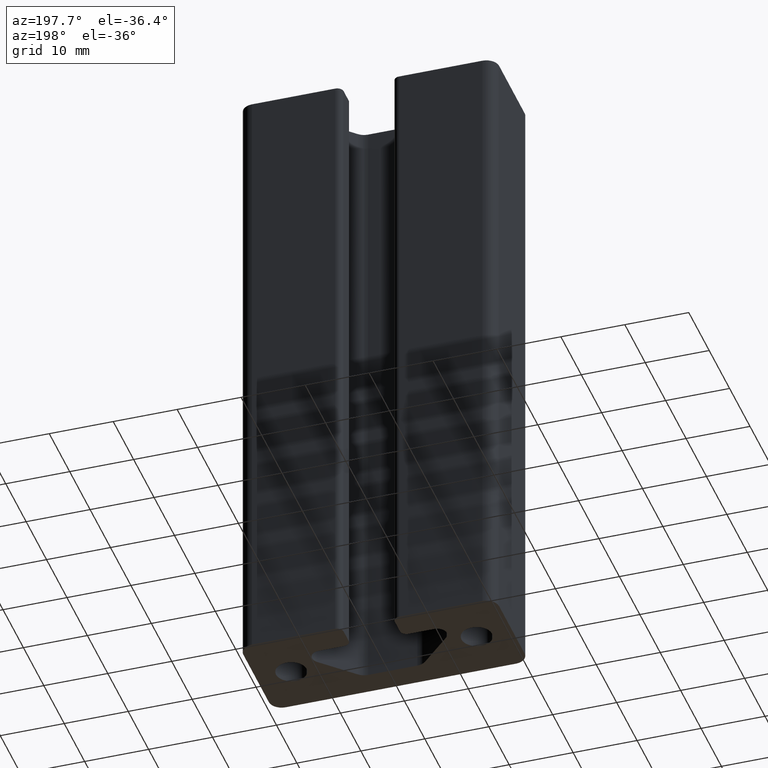
[diagram: clean part render]
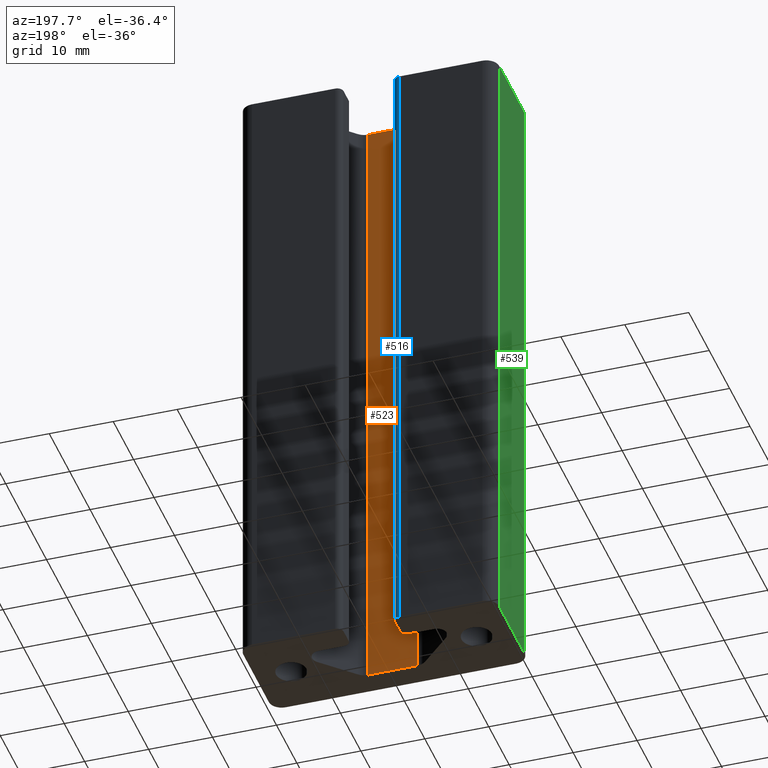
[diagram: same view with three faces highlighted in distinct colors, each labeled with its STEP entity id]
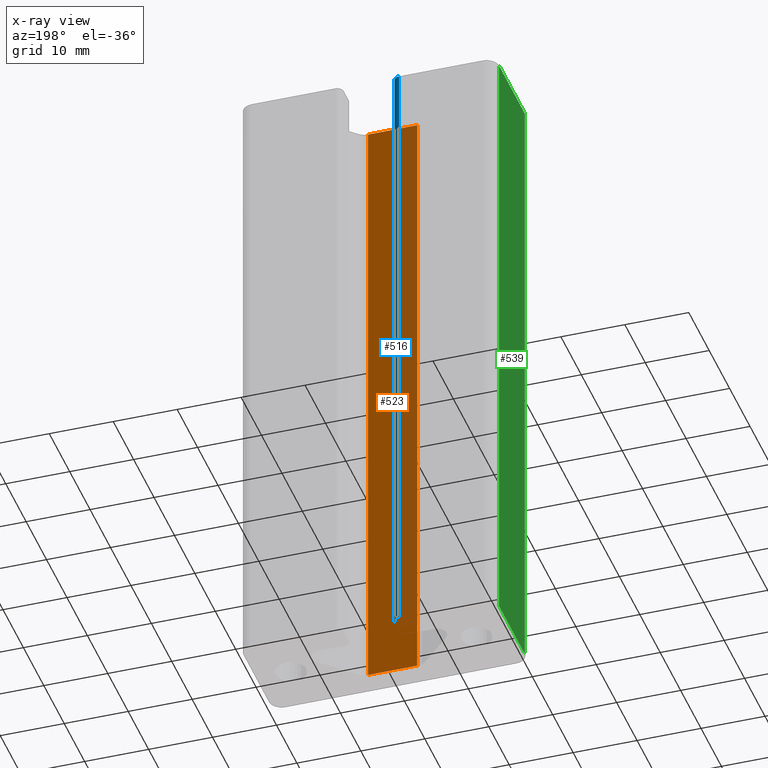
[diagram: x-ray of the same camera — body ghosted, the three highlighted faces saturated]
A machine part, auxiliary view with three faces highlighted in distinct colors.
The next image is the same camera in x-ray (body ghosted, the three faces saturated) — at least one of them is partly hidden behind the body in this view.
Their STEP definitions:

[orange] entity #523 — the highlighted planar face has unit normal (-0, 1, 0).
#71=FACE_OUTER_BOUND('',#99,.T.);
#99=EDGE_LOOP('',(#381,#382,#383,#384));
#141=LINE('',#813,#189);
#142=LINE('',#817,#190);
#143=LINE('',#819,#191);
#144=LINE('',#820,#192);
#189=VECTOR('',#649,100.);
#190=VECTOR('',#654,7.68629110583554);
#191=VECTOR('',#655,100.);
#192=VECTOR('',#656,7.68629110583554);
#237=VERTEX_POINT('',#810);
#238=VERTEX_POINT('',#812);
#239=VERTEX_POINT('',#816);
#240=VERTEX_POINT('',#818);
#296=EDGE_CURVE('',#238,#237,#141,.T.);
#298=EDGE_CURVE('',#237,#239,#142,.T.);
#299=EDGE_CURVE('',#240,#239,#143,.T.);
#300=EDGE_CURVE('',#238,#240,#144,.T.);
#381=ORIENTED_EDGE('',*,*,#298,.T.);
#382=ORIENTED_EDGE('',*,*,#299,.F.);
#383=ORIENTED_EDGE('',*,*,#300,.F.);
#384=ORIENTED_EDGE('',*,*,#296,.T.);
#505=PLANE('',#561);
#523=ADVANCED_FACE('',(#71),#505,.T.);
#561=AXIS2_PLACEMENT_3D('',#815,#652,#653);
#649=DIRECTION('',(0.,0.,1.));
#652=DIRECTION('center_axis',(-2.8888393877829E-16,1.,0.));
#653=DIRECTION('ref_axis',(0.,0.,1.));
#654=DIRECTION('',(1.,2.8888393877829E-16,0.));
#655=DIRECTION('',(0.,0.,1.));
#656=DIRECTION('',(1.,2.8888393877829E-16,0.));
#810=CARTESIAN_POINT('',(-3.84314955291772,-4.25000000000006,100.));
#812=CARTESIAN_POINT('',(-3.84314955291772,-4.25000000000006,0.));
#813=CARTESIAN_POINT('',(-3.84314955291772,-4.25000000000006,0.));
#815=CARTESIAN_POINT('Origin',(-3.84314955291772,-4.25000000000006,0.));
#816=CARTESIAN_POINT('',(3.84314155291782,-4.25000000000006,100.));
#817=CARTESIAN_POINT('',(-1.92157552645886,-4.25000000000006,100.));
#818=CARTESIAN_POINT('',(3.84314155291782,-4.25000000000006,0.));
#819=CARTESIAN_POINT('',(3.84314155291782,-4.25000000000006,0.));
#820=CARTESIAN_POINT('',(-1.92157552645886,-4.25000000000006,0.));

[blue] entity #516 — the highlighted cylindrical surface (edge-blend (fillet) strip) has radius 1 mm, axis along (0, 0, 1).
#21=CIRCLE('',#547,1.000000004051);
#22=CIRCLE('',#548,1.000000004051);
#49=CYLINDRICAL_SURFACE('',#546,1.000000004051);
#64=FACE_OUTER_BOUND('',#92,.T.);
#92=EDGE_LOOP('',(#353,#354,#355,#356));
#126=LINE('',#769,#174);
#129=LINE('',#777,#177);
#174=VECTOR('',#606,100.);
#177=VECTOR('',#613,100.);
#222=VERTEX_POINT('',#766);
#223=VERTEX_POINT('',#768);
#225=VERTEX_POINT('',#774);
#226=VERTEX_POINT('',#776);
#274=EDGE_CURVE('',#223,#222,#126,.T.);
#277=EDGE_CURVE('',#222,#225,#21,.T.);
#278=EDGE_CURVE('',#226,#225,#129,.T.);
#279=EDGE_CURVE('',#223,#226,#22,.T.);
#353=ORIENTED_EDGE('',*,*,#277,.T.);
#354=ORIENTED_EDGE('',*,*,#278,.F.);
#355=ORIENTED_EDGE('',*,*,#279,.F.);
#356=ORIENTED_EDGE('',*,*,#274,.T.);
#516=ADVANCED_FACE('',(#64),#49,.T.);
#546=AXIS2_PLACEMENT_3D('',#773,#609,#610);
#547=AXIS2_PLACEMENT_3D('',#775,#611,#612);
#548=AXIS2_PLACEMENT_3D('',#778,#614,#615);
#606=DIRECTION('',(0.,0.,1.));
#609=DIRECTION('center_axis',(0.,0.,1.));
#610=DIRECTION('ref_axis',(-1.,2.22044604025528E-15,0.));
#611=DIRECTION('center_axis',(0.,0.,-1.));
#612=DIRECTION('ref_axis',(-1.,2.22044604025528E-15,0.));
#613=DIRECTION('',(0.,0.,1.));
#614=DIRECTION('center_axis',(0.,0.,-1.));
#615=DIRECTION('ref_axis',(-1.,2.22044604025528E-15,0.));
#766=CARTESIAN_POINT('',(-5.00000000436262,8.25000000405095,100.));
#768=CARTESIAN_POINT('',(-5.00000000436262,8.25000000405095,0.));
#769=CARTESIAN_POINT('',(-5.00000000436262,8.25000000405095,0.));
#773=CARTESIAN_POINT('Origin',(-5.000000004051,7.24999999999995,0.));
#774=CARTESIAN_POINT('',(-4.,7.24999999999995,100.));
#775=CARTESIAN_POINT('Origin',(-5.000000004051,7.24999999999995,100.));
#776=CARTESIAN_POINT('',(-4.,7.24999999999995,0.));
#777=CARTESIAN_POINT('',(-4.,7.24999999999995,0.));
#778=CARTESIAN_POINT('Origin',(-5.000000004051,7.24999999999995,0.));

[green] entity #539 — the highlighted planar face has unit normal (-1, 0, 0).
#87=FACE_OUTER_BOUND('',#117,.T.);
#117=EDGE_LOOP('',(#441,#442,#443,#444));
#169=LINE('',#907,#217);
#170=LINE('',#911,#218);
#171=LINE('',#913,#219);
#172=LINE('',#914,#220);
#217=VECTOR('',#745,100.);
#218=VECTOR('',#750,12.5000000000004);
#219=VECTOR('',#751,100.);
#220=VECTOR('',#752,12.5000000000004);
#269=VERTEX_POINT('',#904);
#270=VERTEX_POINT('',#906);
#271=VERTEX_POINT('',#910);
#272=VERTEX_POINT('',#912);
#342=EDGE_CURVE('',#270,#269,#169,.T.);
#344=EDGE_CURVE('',#269,#271,#170,.T.);
#345=EDGE_CURVE('',#272,#271,#171,.T.);
#346=EDGE_CURVE('',#270,#272,#172,.T.);
#441=ORIENTED_EDGE('',*,*,#344,.T.);
#442=ORIENTED_EDGE('',*,*,#345,.F.);
#443=ORIENTED_EDGE('',*,*,#346,.F.);
#444=ORIENTED_EDGE('',*,*,#342,.T.);
#512=PLANE('',#595);
#539=ADVANCED_FACE('',(#87),#512,.T.);
#595=AXIS2_PLACEMENT_3D('',#909,#748,#749);
#745=DIRECTION('',(0.,0.,1.));
#748=DIRECTION('center_axis',(-0.999999999999971,2.40000014350976E-7,0.));
#749=DIRECTION('ref_axis',(0.,0.,1.));
#750=DIRECTION('',(2.40000014350976E-7,0.999999999999971,0.));
#751=DIRECTION('',(0.,0.,1.));
#752=DIRECTION('',(2.40000014350976E-7,0.999999999999971,0.));
#904=CARTESIAN_POINT('',(-20.000003,-6.25000000000006,100.));
#906=CARTESIAN_POINT('',(-20.000003,-6.25000000000006,0.));
#907=CARTESIAN_POINT('',(-20.000003,-6.25000000000006,0.));
#909=CARTESIAN_POINT('Origin',(-20.000003,-6.25000000000006,0.));
#910=CARTESIAN_POINT('',(-19.9999999999998,6.24999999999994,100.));
#911=CARTESIAN_POINT('',(-20.0000022499994,-3.12499759898717,100.));
#912=CARTESIAN_POINT('',(-19.9999999999998,6.24999999999994,0.));
#913=CARTESIAN_POINT('',(-19.9999999999998,6.24999999999994,0.));
#914=CARTESIAN_POINT('',(-20.0000022499994,-3.12499759898717,0.));